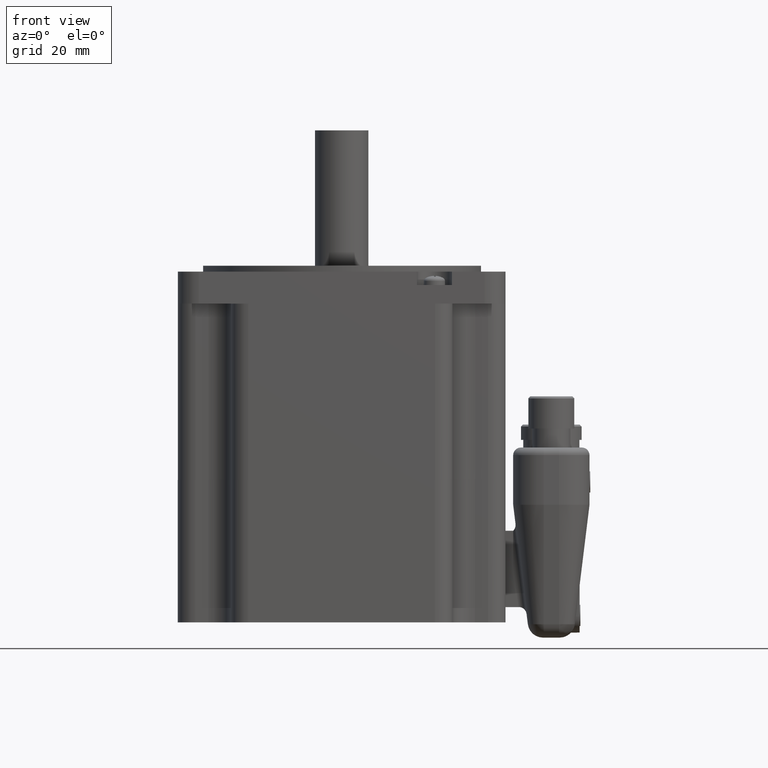
[diagram: clean part render]
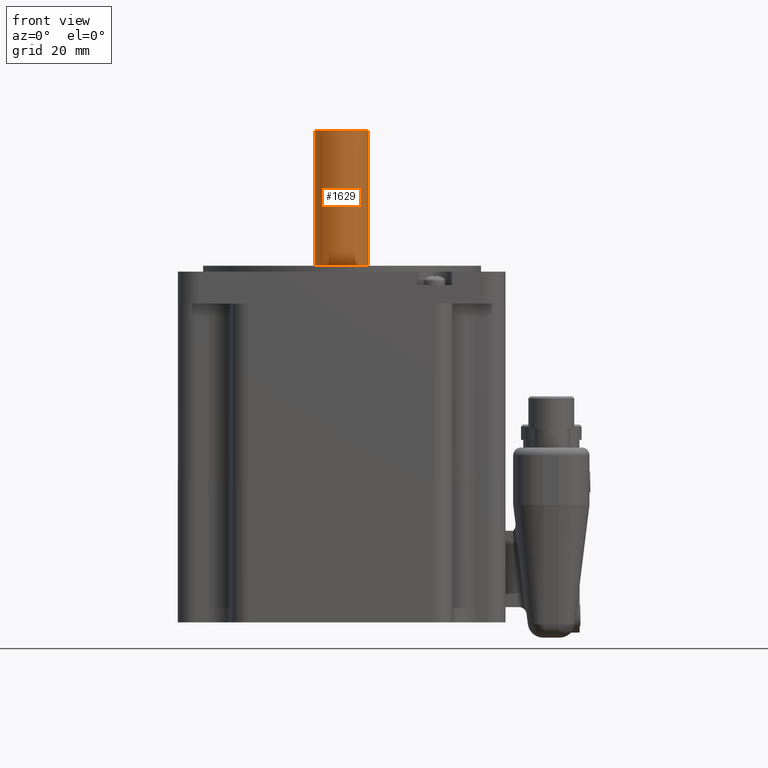
[diagram: same view with one face highlighted and labeled with its STEP entity id]
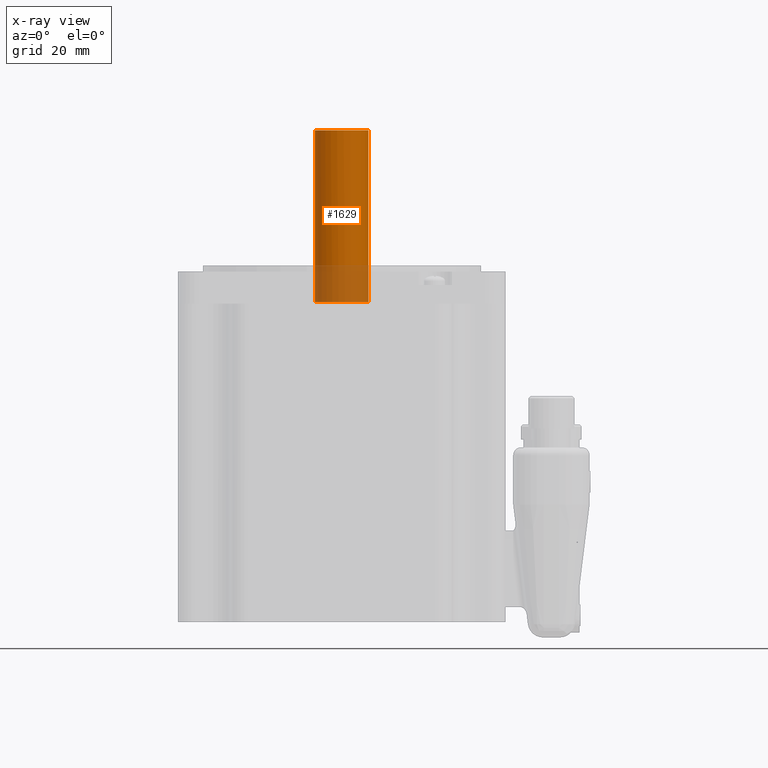
[diagram: x-ray of the same camera — body ghosted, the highlighted face saturated]
A machine part, front view. The second image highlights one B-rep face of the part: STEP entity #1629.
The next image is the same camera in x-ray: the body ghosted, the highlighted face saturated — about 21% of this face is hidden behind the body in this view.
In plain terms, the highlighted cylindrical surface (bore or boss wall) has radius 7 mm, axis along (0, 0, 1).
Its self-contained STEP definition (entity closure, byte-faithful):
#1484=CARTESIAN_POINT('',(7.000000000000004,8.572528E-016,9.600000000000001));
#1485=VERTEX_POINT('',#1484);
#1486=CARTESIAN_POINT('',(0.0,0.0,9.6));
#1487=DIRECTION('',(0.0,0.0,1.0));
#1488=DIRECTION('',(-1.0,0.0,0.0));
#1489=AXIS2_PLACEMENT_3D('',#1486,#1487,#1488);
#1490=CIRCLE('',#1489,7.000000000000004);
#1491=EDGE_CURVE('',#1485,#1485,#1490,.T.);
#1610=CARTESIAN_POINT('',(0.0,0.0,19.600000000000001));
#1611=DIRECTION('',(0.0,0.0,1.0));
#1612=DIRECTION('',(0.409175735529314,0.912455597524638,0.0));
#1613=AXIS2_PLACEMENT_3D('',#1610,#1611,#1612);
#1614=CYLINDRICAL_SURFACE('',#1613,7.000000000000003);
#1615=ORIENTED_EDGE('',*,*,#1491,.T.);
#1616=EDGE_LOOP('',(#1615));
#1617=FACE_OUTER_BOUND('',#1616,.T.);
#1618=CARTESIAN_POINT('',(-2.864230148705196,-6.38718918267247,54.600000000000023));
#1619=VERTEX_POINT('',#1618);
#1620=CARTESIAN_POINT('',(0.0,0.0,54.600000000000023));
#1621=DIRECTION('',(0.0,0.0,-1.0));
#1622=DIRECTION('',(0.409175735529314,0.912455597524638,0.0));
#1623=AXIS2_PLACEMENT_3D('',#1620,#1621,#1622);
#1624=CIRCLE('',#1623,7.000000000000003);
#1625=EDGE_CURVE('',#1619,#1619,#1624,.T.);
#1626=ORIENTED_EDGE('',*,*,#1625,.T.);
#1627=EDGE_LOOP('',(#1626));
#1628=FACE_BOUND('',#1627,.T.);
#1629=ADVANCED_FACE('',(#1617,#1628),#1614,.T.);